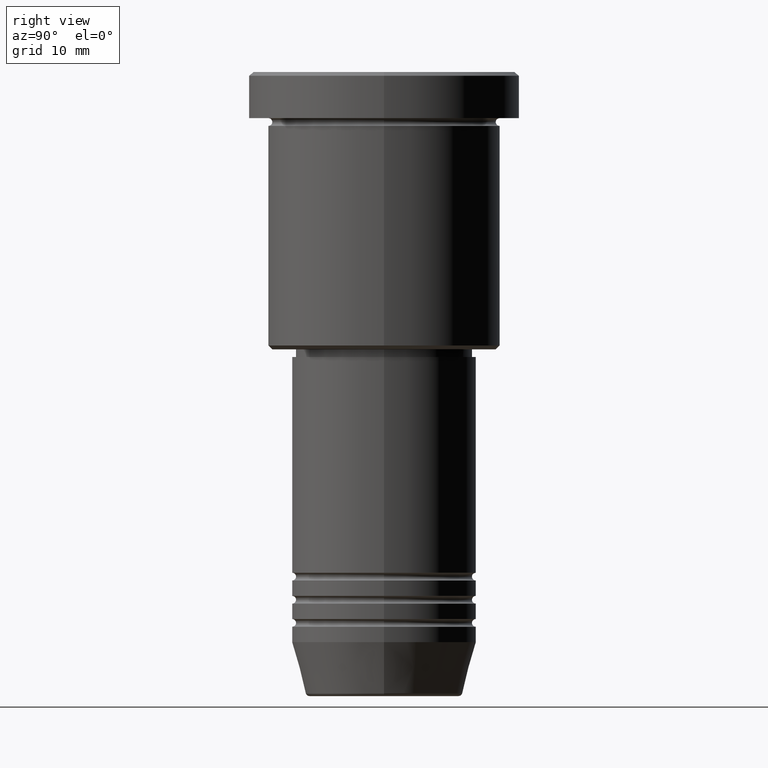
[diagram: clean part render]
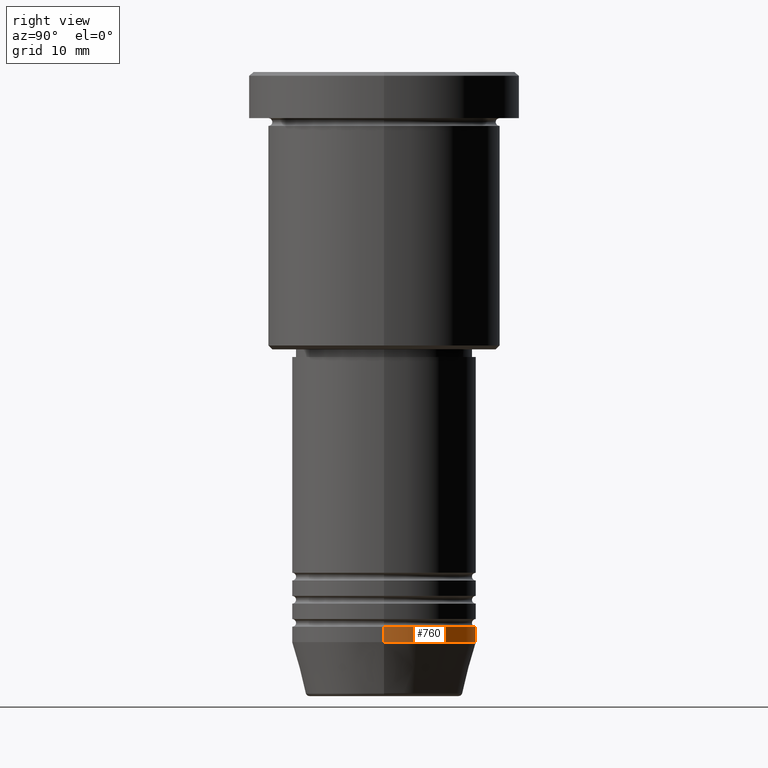
[diagram: same view with one face highlighted and labeled with its STEP entity id]
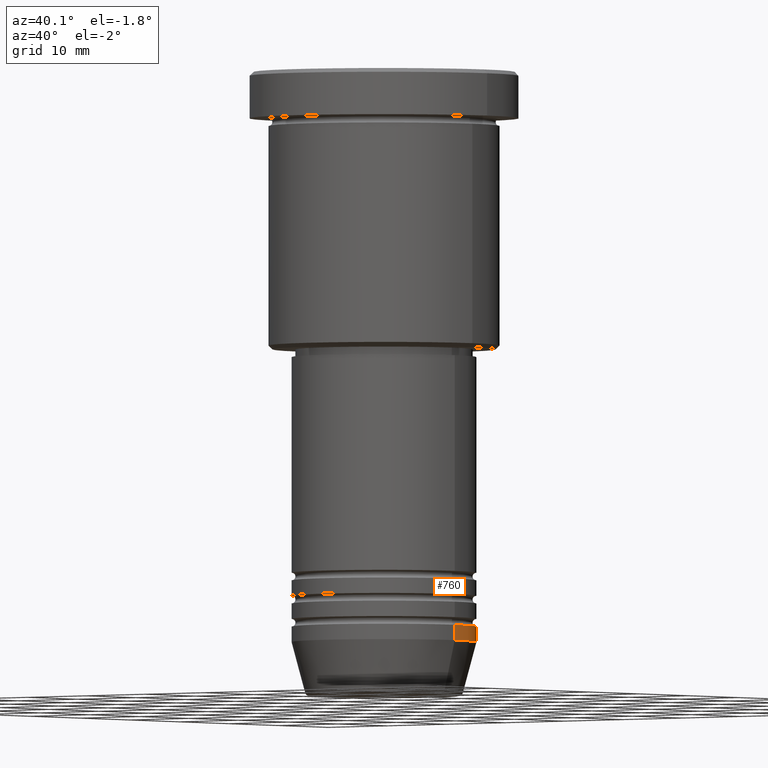
[diagram: same view with one face highlighted and labeled with its STEP entity id]
A machine part, right view. The second image highlights one B-rep face of the part: STEP entity #760.
A second angle (auxiliary view) of the same face is appended — the face is thin or edge-on in the first view.
In plain terms, the highlighted cylindrical surface (partial cylindrical patch) has radius 12 mm, axis along (-0, -0, 1).
Its self-contained STEP definition (entity closure, byte-faithful):
#4 = EDGE_CURVE ( 'NONE', #918, #1021, #461, .T. ) ;
#19 = CARTESIAN_POINT ( 'NONE',  ( 12.00000000000000000, 0.000000000000000000, -74.00000000000000000 ) ) ;
#51 = FACE_OUTER_BOUND ( 'NONE', #815, .T. ) ;
#78 = CARTESIAN_POINT ( 'NONE',  ( -12.00000000000000000, 1.469576158976823947E-15, -74.00000000000000000 ) ) ;
#113 = ORIENTED_EDGE ( 'NONE', *, *, #4, .T. ) ;
#126 = CYLINDRICAL_SURFACE ( 'NONE', #789, 12.00000000000000000 ) ;
#236 = CARTESIAN_POINT ( 'NONE',  ( 12.00000000000000000, 0.000000000000000000, 0.000000000000000000 ) ) ;
#282 = ORIENTED_EDGE ( 'NONE', *, *, #842, .T. ) ;
#284 = DIRECTION ( 'NONE',  ( 1.000000000000000000, 0.000000000000000000, 0.000000000000000000 ) ) ;
#296 = CARTESIAN_POINT ( 'NONE',  ( 0.000000000000000000, 0.000000000000000000, -72.00000000000000000 ) ) ;
#308 = CIRCLE ( 'NONE', #829, 12.00000000000000000 ) ;
#391 = EDGE_CURVE ( 'NONE', #918, #832, #532, .T. ) ;
#396 = CARTESIAN_POINT ( 'NONE',  ( 0.000000000000000000, 0.000000000000000000, 0.000000000000000000 ) ) ;
#404 = DIRECTION ( 'NONE',  ( 1.000000000000000000, 0.000000000000000000, 0.000000000000000000 ) ) ;
#428 = DIRECTION ( 'NONE',  ( 1.000000000000000000, 0.000000000000000000, 0.000000000000000000 ) ) ;
#461 = CIRCLE ( 'NONE', #612, 12.00000000000000000 ) ;
#462 = VECTOR ( 'NONE', #870, 1000.000000000000000 ) ;
#480 = VERTEX_POINT ( 'NONE', #901 ) ;
#481 = ORIENTED_EDGE ( 'NONE', *, *, #391, .F. ) ;
#508 = DIRECTION ( 'NONE',  ( -0.000000000000000000, -0.000000000000000000, 1.000000000000000000 ) ) ;
#510 = DIRECTION ( 'NONE',  ( -0.000000000000000000, -0.000000000000000000, 1.000000000000000000 ) ) ;
#532 = LINE ( 'NONE', #236, #462 ) ;
#612 = AXIS2_PLACEMENT_3D ( 'NONE', #964, #510, #428 ) ;
#760 = ADVANCED_FACE ( 'NONE', ( #51 ), #126, .T. ) ;
#789 = AXIS2_PLACEMENT_3D ( 'NONE', #396, #508, #404 ) ;
#815 = EDGE_LOOP ( 'NONE', ( #113, #282, #911, #481 ) ) ;
#829 = AXIS2_PLACEMENT_3D ( 'NONE', #296, #1107, #284 ) ;
#832 = VERTEX_POINT ( 'NONE', #1158 ) ;
#842 = EDGE_CURVE ( 'NONE', #1021, #480, #1088, .T. ) ;
#866 = VECTOR ( 'NONE', #1064, 1000.000000000000000 ) ;
#870 = DIRECTION ( 'NONE',  ( -0.000000000000000000, -0.000000000000000000, 1.000000000000000000 ) ) ;
#901 = CARTESIAN_POINT ( 'NONE',  ( -12.00000000000000000, 1.469576158976823947E-15, -72.00000000000000000 ) ) ;
#911 = ORIENTED_EDGE ( 'NONE', *, *, #1142, .F. ) ;
#918 = VERTEX_POINT ( 'NONE', #19 ) ;
#964 = CARTESIAN_POINT ( 'NONE',  ( 0.000000000000000000, 0.000000000000000000, -74.00000000000000000 ) ) ;
#1021 = VERTEX_POINT ( 'NONE', #78 ) ;
#1064 = DIRECTION ( 'NONE',  ( -0.000000000000000000, -0.000000000000000000, 1.000000000000000000 ) ) ;
#1088 = LINE ( 'NONE', #1178, #866 ) ;
#1107 = DIRECTION ( 'NONE',  ( -0.000000000000000000, -0.000000000000000000, 1.000000000000000000 ) ) ;
#1142 = EDGE_CURVE ( 'NONE', #832, #480, #308, .T. ) ;
#1158 = CARTESIAN_POINT ( 'NONE',  ( 12.00000000000000000, 0.000000000000000000, -72.00000000000000000 ) ) ;
#1178 = CARTESIAN_POINT ( 'NONE',  ( -12.00000000000000000, 1.469576158976823947E-15, 0.000000000000000000 ) ) ;